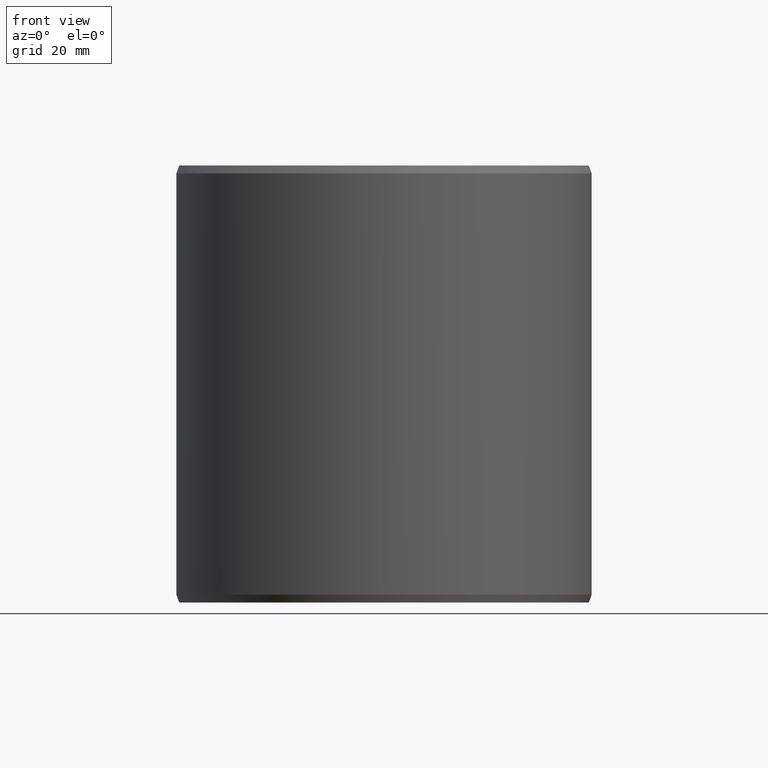
[diagram: clean part render]
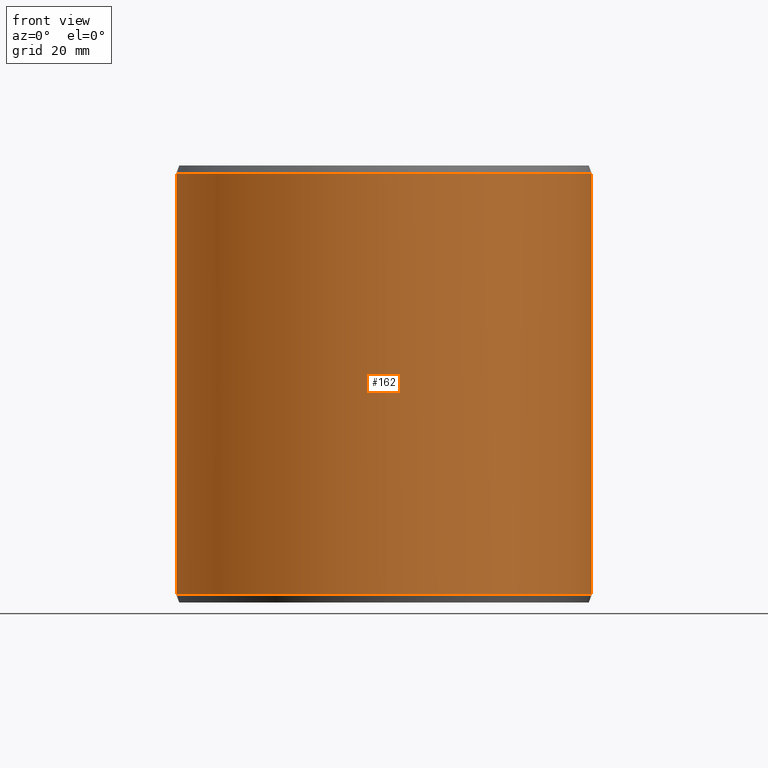
[diagram: same view with one face highlighted and labeled with its STEP entity id]
A machine part, front view. The second image highlights one B-rep face of the part: STEP entity #162.
In plain terms, the highlighted cylindrical surface (partial cylindrical patch) has radius 47.5 mm, axis along (-0, 0, -1).
Its self-contained STEP definition (entity closure, byte-faithful):
#162=ADVANCED_FACE('',(#185,#186),#187,.T.);
#185=FACE_OUTER_BOUND('',#211,.T.);
#186=FACE_BOUND('',#212,.T.);
#187=CYLINDRICAL_SURFACE('',#213,0.0475);
#211=EDGE_LOOP('',(#289,#290,#291,#292));
#212=EDGE_LOOP('',(#293));
#213=AXIS2_PLACEMENT_3D('',#294,#295,#296);
#289=ORIENTED_EDGE('',*,*,#314,.T.);
#290=ORIENTED_EDGE('',*,*,#323,.F.);
#291=ORIENTED_EDGE('',*,*,#309,.F.);
#292=ORIENTED_EDGE('',*,*,#324,.T.);
#293=ORIENTED_EDGE('',*,*,#327,.T.);
#294=CARTESIAN_POINT('',(-6.93889390390723E-018,-6.93889390390723E-018,0.0));
#295=DIRECTION('',(6.12323399573677E-017,0.0,-1.0));
#296=DIRECTION('',(-1.0,0.0,-6.12323399573677E-017));
#309=EDGE_CURVE('',#341,#342,#343,.T.);
#314=EDGE_CURVE('',#351,#349,#352,.T.);
#323=EDGE_CURVE('',#342,#349,#365,.T.);
#324=EDGE_CURVE('',#341,#351,#366,.T.);
#327=EDGE_CURVE('',#370,#370,#371,.T.);
#341=VERTEX_POINT('',#389);
#342=VERTEX_POINT('',#390);
#343=CIRCLE('',#391,0.0475);
#349=VERTEX_POINT('',#399);
#351=VERTEX_POINT('',#402);
#352=CIRCLE('',#403,0.0475);
#365=LINE('',#422,#423);
#366=LINE('',#424,#425);
#370=VERTEX_POINT('',#505);
#371=B_SPLINE_CURVE_WITH_KNOTS('',3,(#506,#507,#508,#509,#510,#511,#512,#513,#514,#515,#516,#517,#518,#519,#520,#521,#522,#523,#524,#525,#526,#527,#528,#529,#530,#531,#532,#533,#534,#535,#536,#537,#538,#539,#540,#541,#542,#543,#544,#545,#546,#547,#548,#549,#550,#551,#552,#553,#554,#555,#556,#557,#558,#559,#560,#561,#562,#563,#564,#565,#566,#567,#568,#569,#570,#571,#572,#573,#574,#575,#576,#577,#578,#579,#580,#581),.UNSPECIFIED.,.T.,.F.,(2,2,2,2,2,2,2,2,2,2,2,2,2,2,2,2,2,2,2,2,2,2,2,2,2,2,2,2,2,2,2,2,2,2,2,2,2,2,2,2),(-0.000977578898854877,0.0,0.000977578898854921,0.00146636834828239,0.00195515779770986,0.00293273669656481,0.00391031559541975,0.00488789449427469,0.00586547339312963,0.00684305229198457,0.00782063119083951,0.00879821008969446,0.0097757889885494,0.0102645784379769,0.0107533678874043,0.0117309467862593,0.0127085256851142,0.0131973151345416,0.0136861045839691,0.014663683482824,0.0156412623816788,0.0166188412805337,0.0175964201793886,0.0185739990782435,0.0195515779770983,0.0205291568759532,0.0215067357748081,0.0219955252242355,0.022484314673663,0.0234618935725178,0.0244394724713727,0.0249282619208001,0.0254170513702276,0.0263946302690825,0.0273722091679373,0.0283497880667922,0.0293273669656471,0.030304945864502,0.0312825247633568,0.0322601036622118),.UNSPECIFIED.);
#389=CARTESIAN_POINT('',(0.000828989305770963,0.0474927655199286,0.0018));
#390=CARTESIAN_POINT('',(-6.93889390390723E-018,0.0475,0.0018));
#391=AXIS2_PLACEMENT_3D('',#595,#596,#597);
#399=CARTESIAN_POINT('',(-1.21430643318376E-017,0.0475,0.0982));
#402=CARTESIAN_POINT('',(0.000828989305770958,0.0474927655199286,0.0982));
#403=AXIS2_PLACEMENT_3D('',#604,#605,#606);
#422=CARTESIAN_POINT('',(-6.93889390390723E-018,0.0475,0.0018));
#423=VECTOR('',#619,1.0);
#424=CARTESIAN_POINT('',(0.000828989305770963,0.0474927655199286,0.0018));
#425=VECTOR('',#620,1.0);
#505=CARTESIAN_POINT('',(0.0379140577320904,-0.0286142311846347,0.05));
#506=CARTESIAN_POINT('',(0.0379140577320904,-0.0286142311846347,0.0496694306931599));
#507=CARTESIAN_POINT('',(0.0379140577320904,-0.0286142311846347,0.0503305693068401));
#508=CARTESIAN_POINT('',(0.0379337482737822,-0.0285881938327338,0.0506555684890789));
#509=CARTESIAN_POINT('',(0.0379913437643912,-0.0285115559055449,0.0511350644287005));
#510=CARTESIAN_POINT('',(0.0380152491140048,-0.0284796967504227,0.0512935527460611));
#511=CARTESIAN_POINT('',(0.0380725831443132,-0.0284030052092246,0.0516077834835698));
#512=CARTESIAN_POINT('',(0.0381061626143744,-0.0283579679692925,0.0517639036150756));
#513=CARTESIAN_POINT('',(0.038218902931078,-0.0282060519198823,0.0522179488174879));
#514=CARTESIAN_POINT('',(0.0383104579267354,-0.0280818799079132,0.0525050430645195));
#515=CARTESIAN_POINT('',(0.0385246598431271,-0.0277872947529977,0.0530483801986647));
#516=CARTESIAN_POINT('',(0.0386483271854155,-0.0276153983007897,0.0533054581723043));
#517=CARTESIAN_POINT('',(0.0389152291911593,-0.0272379946864986,0.0537663273363462));
#518=CARTESIAN_POINT('',(0.0390594513924601,-0.0270311703363561,0.0539732168034009));
#519=CARTESIAN_POINT('',(0.0393683626780023,-0.0265792575683808,0.0543387429609978));
#520=CARTESIAN_POINT('',(0.039530619824131,-0.0263376290648264,0.0544939346069049));
#521=CARTESIAN_POINT('',(0.0398612400292338,-0.0258345147383917,0.0547433725881275));
#522=CARTESIAN_POINT('',(0.0400320481937458,-0.0255693044946158,0.0548394761140137));
#523=CARTESIAN_POINT('',(0.0403758865713564,-0.0250228295462711,0.0549680041754136));
#524=CARTESIAN_POINT('',(0.0405459476166358,-0.0247463658294478,0.0549998203623692));
#525=CARTESIAN_POINT('',(0.0408821224801255,-0.0241869500230154,0.0550001781351254));
#526=CARTESIAN_POINT('',(0.041049896937971,-0.023901022220372,0.0549676749586588));
#527=CARTESIAN_POINT('',(0.0413689609290167,-0.0233444206064371,0.0548400389840388));
#528=CARTESIAN_POINT('',(0.0415212672041448,-0.0230721957047784,0.0547456032027471));
#529=CARTESIAN_POINT('',(0.041739530632651,-0.0226734325541013,0.0545577238790333));
#530=CARTESIAN_POINT('',(0.0418109210483792,-0.0225414701180167,0.0544868908736533));
#531=CARTESIAN_POINT('',(0.0419476617869625,-0.022285974616378,0.0543321763283563));
#532=CARTESIAN_POINT('',(0.0420132356238758,-0.0221620492494996,0.0542482036280141));
#533=CARTESIAN_POINT('',(0.0422020439502198,-0.0218016298592996,0.0539768889673421));
#534=CARTESIAN_POINT('',(0.0423174390156119,-0.0215763569175475,0.053770325036374));
#535=CARTESIAN_POINT('',(0.0425280907093809,-0.0211581266488341,0.0533037329538909));
#536=CARTESIAN_POINT('',(0.042619881371723,-0.0209720946961285,0.0530514266926122));
#537=CARTESIAN_POINT('',(0.042739332196068,-0.0207269810743129,0.0526455425622394));
#538=CARTESIAN_POINT('',(0.0427760841210189,-0.020650972882961,0.052505642973465));
#539=CARTESIAN_POINT('',(0.0428435076710601,-0.0205107265639491,0.0522164083311766));
#540=CARTESIAN_POINT('',(0.0428742272343621,-0.0204463839361678,0.0520665760236278));
#541=CARTESIAN_POINT('',(0.0429554374986243,-0.020275509792293,0.0516124939018336));
#542=CARTESIAN_POINT('',(0.0429958689324566,-0.0201893389224424,0.0513008440189622));
#543=CARTESIAN_POINT('',(0.0430504821382757,-0.0200726216285826,0.05065979623658));
#544=CARTESIAN_POINT('',(0.0430643872169361,-0.0200426683264596,0.0503282520212604));
#545=CARTESIAN_POINT('',(0.0430644894563511,-0.0200424486497659,0.0496754390335766));
#546=CARTESIAN_POINT('',(0.0430511377487938,-0.0200712149677724,0.0493508756254432));
#547=CARTESIAN_POINT('',(0.0429966580217803,-0.0201876578806514,0.0487055195104228));
#548=CARTESIAN_POINT('',(0.0429557127458464,-0.0202749201211607,0.0483898257485793));
#549=CARTESIAN_POINT('',(0.0428483448370668,-0.0205008533516763,0.0477879340983373));
#550=CARTESIAN_POINT('',(0.0427811170311331,-0.0206412112528463,0.0474971271372826));
#551=CARTESIAN_POINT('',(0.0426205927167167,-0.0209706617180261,0.046950313534283));
#552=CARTESIAN_POINT('',(0.0425288135853312,-0.0211566378453663,0.0466985588760719));
#553=CARTESIAN_POINT('',(0.0423211311995558,-0.0215690788835737,0.0462371769790789));
#554=CARTESIAN_POINT('',(0.0422037759896605,-0.0217982854809791,0.0460259127411306));
#555=CARTESIAN_POINT('',(0.0419514141150003,-0.0222800989999475,0.0456626505277647));
#556=CARTESIAN_POINT('',(0.0418160645343571,-0.0225334952713292,0.0455088383239124));
#557=CARTESIAN_POINT('',(0.0415980875404884,-0.0229318998023495,0.045320195654118));
#558=CARTESIAN_POINT('',(0.0415224938127193,-0.0230685329504931,0.0452641595044207));
#559=CARTESIAN_POINT('',(0.0413689181785099,-0.0233428214587494,0.0451685910710995));
#560=CARTESIAN_POINT('',(0.0412907955129448,-0.0234807528062265,0.045128827008201));
#561=CARTESIAN_POINT('',(0.0410523648297552,-0.0238967681421657,0.0450330476229891));
#562=CARTESIAN_POINT('',(0.0408880159591277,-0.0241770410918639,0.0450003137687369));
#563=CARTESIAN_POINT('',(0.040547733662697,-0.0247434932830945,0.0449996906768628));
#564=CARTESIAN_POINT('',(0.0403771917659523,-0.0250206843065067,0.045031875509787));
#565=CARTESIAN_POINT('',(0.0401217930542598,-0.025426704203037,0.0451267978873251));
#566=CARTESIAN_POINT('',(0.0400366911460185,-0.0255604786533397,0.0451662709035635));
#567=CARTESIAN_POINT('',(0.0398666495856282,-0.0258248902752023,0.0452612219504207));
#568=CARTESIAN_POINT('',(0.0397814444710016,-0.0259559174510112,0.0453169826305923));
#569=CARTESIAN_POINT('',(0.0395317519701923,-0.0263359542424335,0.0455049112930952));
#570=CARTESIAN_POINT('',(0.0393714118965852,-0.0265747257367032,0.0456582683202281));
#571=CARTESIAN_POINT('',(0.0390641993956006,-0.0270242936687033,0.0460205612086144));
#572=CARTESIAN_POINT('',(0.0389167250583702,-0.0272358589667871,0.0462313885870776));
#573=CARTESIAN_POINT('',(0.0386496290886614,-0.0276135777152544,0.0466919980102483));
#574=CARTESIAN_POINT('',(0.0385282936539394,-0.0277822662621697,0.0469433631529279));
#575=CARTESIAN_POINT('',(0.0383123046040156,-0.0280793704786166,0.0474893360700847));
#576=CARTESIAN_POINT('',(0.0382195817821018,-0.0282051296488352,0.0477800504634852));
#577=CARTESIAN_POINT('',(0.0380699127930543,-0.0284068215405316,0.0483813637928066));
#578=CARTESIAN_POINT('',(0.0380118654144432,-0.0284842467738041,0.0486959914817461));
#579=CARTESIAN_POINT('',(0.0379337519017797,-0.02858819149948,0.0493425300046267));
#580=CARTESIAN_POINT('',(0.0379140577320904,-0.0286142311846347,0.0496694306931599));
#581=CARTESIAN_POINT('',(0.0379140577320904,-0.0286142311846347,0.0503305693068401));
#595=CARTESIAN_POINT('',(-6.93889390390723E-018,-6.93889390390723E-018,0.0018));
#596=DIRECTION('',(6.12323399573677E-017,0.0,-1.0));
#597=DIRECTION('',(-1.0,0.0,-6.12323399573677E-017));
#604=CARTESIAN_POINT('',(-1.21430643318376E-017,-6.93889390390723E-018,0.0982));
#605=DIRECTION('',(6.12323399573677E-017,0.0,-1.0));
#606=DIRECTION('',(-1.0,0.0,-6.12323399573677E-017));
#619=DIRECTION('',(-5.3985170414216E-017,0.0,1.0));
#620=DIRECTION('',(-5.39862741932399E-017,-1.26480548386986E-019,1.0));